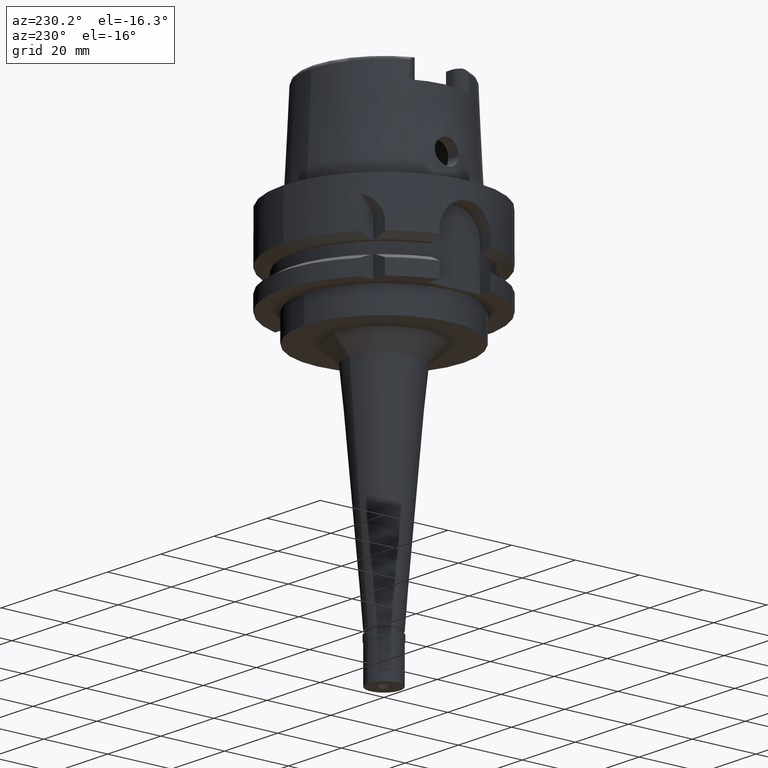
[diagram: clean part render]
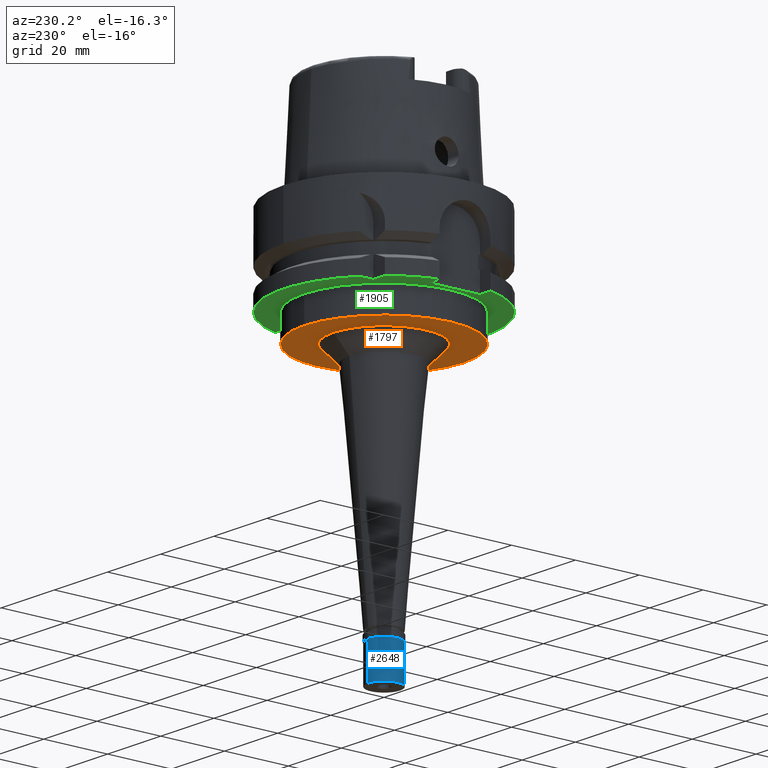
[diagram: same view with three faces highlighted in distinct colors, each labeled with its STEP entity id]
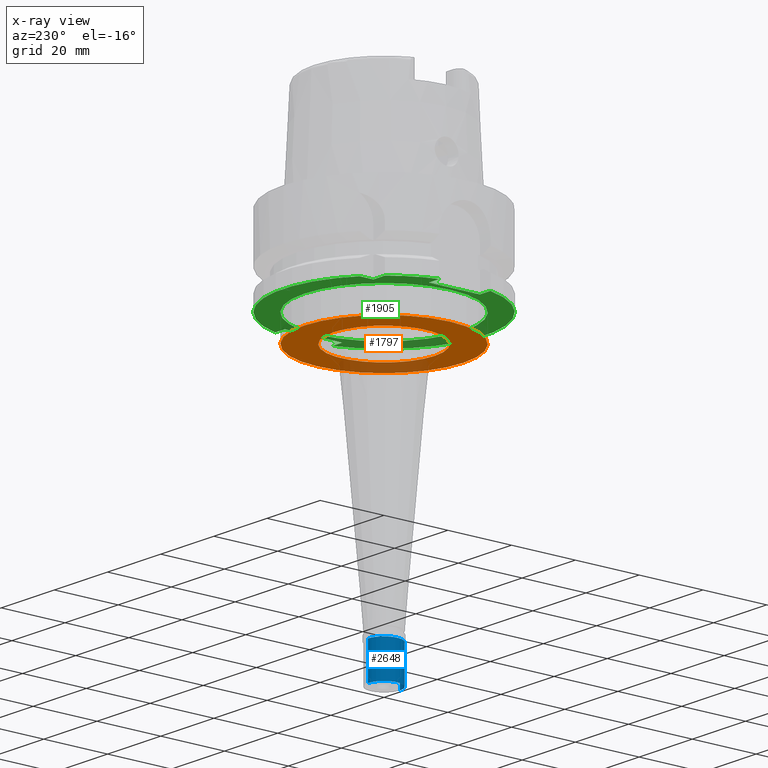
[diagram: x-ray of the same camera — body ghosted, the three highlighted faces saturated]
A machine part, auxiliary view with three faces highlighted in distinct colors.
The next image is the same camera in x-ray (body ghosted, the three faces saturated) — at least one of them is partly hidden behind the body in this view.
Their STEP definitions:

[orange] entity #1797 — the highlighted planar face has unit normal (0, 0, -1).
#317 = CARTESIAN_POINT ( 'NONE',  ( 0.0000000000000000000, -15.86174045624000328, -34.00000000000000000 ) ) ;
#330 = DIRECTION ( 'NONE',  ( 0.0000000000000000000, 0.0000000000000000000, 1.000000000000000000 ) ) ;
#483 = AXIS2_PLACEMENT_3D ( 'NONE', #1139, #2856, #4512 ) ;
#656 = CARTESIAN_POINT ( 'NONE',  ( 0.0000000000000000000, -25.00000000000000000, -34.00000000000000000 ) ) ;
#696 = CARTESIAN_POINT ( 'NONE',  ( 0.0000000000000000000, 1.707341335030999953E-14, -34.00000000000000000 ) ) ;
#706 = CARTESIAN_POINT ( 'NONE',  ( 0.0000000000000000000, 25.00000000000000000, -34.00000000000000000 ) ) ;
#770 = DIRECTION ( 'NONE',  ( 0.0000000000000000000, 0.0000000000000000000, -1.000000000000000000 ) ) ;
#810 = DIRECTION ( 'NONE',  ( 0.0000000000000000000, -1.000000000000000000, 0.0000000000000000000 ) ) ;
#1056 = ORIENTED_EDGE ( 'NONE', *, *, #1578, .F. ) ;
#1139 = CARTESIAN_POINT ( 'NONE',  ( 0.0000000000000000000, 0.0000000000000000000, -34.00000000000000000 ) ) ;
#1303 = EDGE_CURVE ( 'NONE', #4961, #3239, #3235, .T. ) ;
#1331 = DIRECTION ( 'NONE',  ( 0.0000000000000000000, 0.0000000000000000000, -1.000000000000000000 ) ) ;
#1392 = EDGE_CURVE ( 'NONE', #4087, #1724, #3598, .T. ) ;
#1436 = EDGE_LOOP ( 'NONE', ( #4672, #4607 ) ) ;
#1578 = EDGE_CURVE ( 'NONE', #1724, #4087, #2252, .T. ) ;
#1588 = CARTESIAN_POINT ( 'NONE',  ( 0.0000000000000000000, 0.0000000000000000000, -34.00000000000000000 ) ) ;
#1593 = DIRECTION ( 'NONE',  ( 0.0000000000000000000, -1.000000000000000000, 0.0000000000000000000 ) ) ;
#1607 = FACE_OUTER_BOUND ( 'NONE', #1617, .T. ) ;
#1617 = EDGE_LOOP ( 'NONE', ( #5018, #1056 ) ) ;
#1724 = VERTEX_POINT ( 'NONE', #656 ) ;
#1797 = ADVANCED_FACE ( 'NONE', ( #1607, #5407 ), #4124, .T. ) ;
#2252 = CIRCLE ( 'NONE', #2961, 25.00000000000000000 ) ;
#2856 = DIRECTION ( 'NONE',  ( 0.0000000000000000000, 0.0000000000000000000, -1.000000000000000000 ) ) ;
#2961 = AXIS2_PLACEMENT_3D ( 'NONE', #5437, #330, #1593 ) ;
#3024 = DIRECTION ( 'NONE',  ( 0.0000000000000000000, -1.000000000000000000, 0.0000000000000000000 ) ) ;
#3235 = CIRCLE ( 'NONE', #5182, 15.86174045624000328 ) ;
#3239 = VERTEX_POINT ( 'NONE', #4397 ) ;
#3598 = CIRCLE ( 'NONE', #5000, 25.00000000000000000 ) ;
#3687 = CIRCLE ( 'NONE', #483, 15.86174045624000328 ) ;
#3788 = CARTESIAN_POINT ( 'NONE',  ( 0.0000000000000000000, 0.0000000000000000000, -34.00000000000000000 ) ) ;
#4087 = VERTEX_POINT ( 'NONE', #706 ) ;
#4124 = PLANE ( 'NONE',  #4644 ) ;
#4397 = CARTESIAN_POINT ( 'NONE',  ( 0.0000000000000000000, 15.86174045624000328, -34.00000000000000000 ) ) ;
#4439 = EDGE_CURVE ( 'NONE', #3239, #4961, #3687, .T. ) ;
#4512 = DIRECTION ( 'NONE',  ( 0.0000000000000000000, 1.000000000000000000, 0.0000000000000000000 ) ) ;
#4607 = ORIENTED_EDGE ( 'NONE', *, *, #1303, .F. ) ;
#4644 = AXIS2_PLACEMENT_3D ( 'NONE', #1588, #770, #810 ) ;
#4672 = ORIENTED_EDGE ( 'NONE', *, *, #4439, .F. ) ;
#4870 = DIRECTION ( 'NONE',  ( 0.0000000000000000000, 1.000000000000000000, 0.0000000000000000000 ) ) ;
#4892 = DIRECTION ( 'NONE',  ( 0.0000000000000000000, 0.0000000000000000000, 1.000000000000000000 ) ) ;
#4961 = VERTEX_POINT ( 'NONE', #317 ) ;
#5000 = AXIS2_PLACEMENT_3D ( 'NONE', #696, #4892, #4870 ) ;
#5018 = ORIENTED_EDGE ( 'NONE', *, *, #1392, .F. ) ;
#5182 = AXIS2_PLACEMENT_3D ( 'NONE', #3788, #1331, #3024 ) ;
#5407 = FACE_BOUND ( 'NONE', #1436, .T. ) ;
#5437 = CARTESIAN_POINT ( 'NONE',  ( 0.0000000000000000000, 1.707341335030999953E-14, -34.00000000000000000 ) ) ;

[blue] entity #2648 — the highlighted cylindrical surface (edge-blend (fillet) strip) has radius 5 mm, axis along (0, 0, 1).
#259 = CARTESIAN_POINT ( 'NONE',  ( 0.0000000000000000000, 0.0000000000000000000, -13.65000000000000036 ) ) ;
#491 = VECTOR ( 'NONE', #5374, 1000.000000000000000 ) ;
#711 = EDGE_CURVE ( 'NONE', #2506, #3742, #4185, .T. ) ;
#768 = CARTESIAN_POINT ( 'NONE',  ( 0.0000000000000000000, -5.000000000000000000, -13.00000000000000000 ) ) ;
#993 = CARTESIAN_POINT ( 'NONE',  ( 0.0000000000000000000, 0.0000000000000000000, -1.800000000000000044 ) ) ;
#1052 = DIRECTION ( 'NONE',  ( 0.0000000000000000000, -1.000000000000000000, 0.0000000000000000000 ) ) ;
#1072 = EDGE_CURVE ( 'NONE', #4005, #2506, #1272, .T. ) ;
#1167 = ORIENTED_EDGE ( 'NONE', *, *, #711, .T. ) ;
#1272 = CIRCLE ( 'NONE', #1980, 5.000000000000000000 ) ;
#1480 = ORIENTED_EDGE ( 'NONE', *, *, #1072, .T. ) ;
#1544 = EDGE_CURVE ( 'NONE', #3742, #3531, #3686, .T. ) ;
#1615 = VECTOR ( 'NONE', #2470, 1000.000000000000000 ) ;
#1814 = DIRECTION ( 'NONE',  ( 0.0000000000000000000, 0.0000000000000000000, -1.000000000000000000 ) ) ;
#1934 = DIRECTION ( 'NONE',  ( 0.0000000000000000000, 1.000000000000000000, 0.0000000000000000000 ) ) ;
#1980 = AXIS2_PLACEMENT_3D ( 'NONE', #993, #1814, #1052 ) ;
#2244 = ORIENTED_EDGE ( 'NONE', *, *, #1544, .T. ) ;
#2470 = DIRECTION ( 'NONE',  ( 0.0000000000000000000, 0.0000000000000000000, -1.000000000000000000 ) ) ;
#2494 = CARTESIAN_POINT ( 'NONE',  ( 0.0000000000000000000, 5.000000000000000000, -1.800000000000000044 ) ) ;
#2506 = VERTEX_POINT ( 'NONE', #5327 ) ;
#2648 = ADVANCED_FACE ( 'NONE', ( #2728 ), #5314, .T. ) ;
#2728 = FACE_OUTER_BOUND ( 'NONE', #4924, .T. ) ;
#2902 = AXIS2_PLACEMENT_3D ( 'NONE', #259, #4494, #1934 ) ;
#2908 = DIRECTION ( 'NONE',  ( 0.0000000000000000000, 1.000000000000000000, 0.0000000000000000000 ) ) ;
#3225 = ORIENTED_EDGE ( 'NONE', *, *, #4938, .F. ) ;
#3504 = AXIS2_PLACEMENT_3D ( 'NONE', #4155, #3797, #2908 ) ;
#3531 = VERTEX_POINT ( 'NONE', #768 ) ;
#3650 = LINE ( 'NONE', #4912, #491 ) ;
#3686 = CIRCLE ( 'NONE', #3504, 5.000000000000000000 ) ;
#3742 = VERTEX_POINT ( 'NONE', #4270 ) ;
#3797 = DIRECTION ( 'NONE',  ( 0.0000000000000000000, 0.0000000000000000000, 1.000000000000000000 ) ) ;
#4005 = VERTEX_POINT ( 'NONE', #4348 ) ;
#4155 = CARTESIAN_POINT ( 'NONE',  ( 0.0000000000000000000, 0.0000000000000000000, -13.00000000000000000 ) ) ;
#4185 = LINE ( 'NONE', #2494, #1615 ) ;
#4270 = CARTESIAN_POINT ( 'NONE',  ( 0.0000000000000000000, 5.000000000000000000, -13.00000000000000000 ) ) ;
#4348 = CARTESIAN_POINT ( 'NONE',  ( 0.0000000000000000000, -5.000000000000000000, -1.800000000000000044 ) ) ;
#4494 = DIRECTION ( 'NONE',  ( 0.0000000000000000000, 0.0000000000000000000, 1.000000000000000000 ) ) ;
#4912 = CARTESIAN_POINT ( 'NONE',  ( 0.0000000000000000000, -5.000000000000000000, -1.800000000000000044 ) ) ;
#4924 = EDGE_LOOP ( 'NONE', ( #2244, #3225, #1480, #1167 ) ) ;
#4938 = EDGE_CURVE ( 'NONE', #4005, #3531, #3650, .T. ) ;
#5314 = CYLINDRICAL_SURFACE ( 'NONE', #2902, 5.000000000000000000 ) ;
#5327 = CARTESIAN_POINT ( 'NONE',  ( 0.0000000000000000000, 5.000000000000000000, -1.800000000000000044 ) ) ;
#5374 = DIRECTION ( 'NONE',  ( 0.0000000000000000000, 0.0000000000000000000, -1.000000000000000000 ) ) ;

[green] entity #1905 — the highlighted planar face has unit normal (0, 0, -1).
#34 = VERTEX_POINT ( 'NONE', #3348 ) ;
#73 = CARTESIAN_POINT ( 'NONE',  ( -30.46719547316000032, -8.000000000000000000, -26.00000000000000000 ) ) ;
#93 = EDGE_CURVE ( 'NONE', #264, #34, #4309, .T. ) ;
#101 = LINE ( 'NONE', #1772, #2723 ) ;
#202 = DIRECTION ( 'NONE',  ( 0.0000000000000000000, 1.000000000000000000, 0.0000000000000000000 ) ) ;
#248 = VERTEX_POINT ( 'NONE', #73 ) ;
#262 = CARTESIAN_POINT ( 'NONE',  ( 26.50000000000000000, -9.000000000000000000, -26.00000000000000000 ) ) ;
#264 = VERTEX_POINT ( 'NONE', #925 ) ;
#307 = AXIS2_PLACEMENT_3D ( 'NONE', #1761, #1351, #1784 ) ;
#314 = VECTOR ( 'NONE', #758, 1000.000000000000000 ) ;
#321 = DIRECTION ( 'NONE',  ( 0.0000000000000000000, 1.000000000000000000, 0.0000000000000000000 ) ) ;
#338 = LINE ( 'NONE', #4136, #1277 ) ;
#358 = EDGE_CURVE ( 'NONE', #3512, #564, #4039, .T. ) ;
#379 = VERTEX_POINT ( 'NONE', #2944 ) ;
#390 = AXIS2_PLACEMENT_3D ( 'NONE', #3330, #1223, #1148 ) ;
#415 = CARTESIAN_POINT ( 'NONE',  ( -20.00000000000000000, 20.00000000000000000, -26.00000000000000000 ) ) ;
#438 = DIRECTION ( 'NONE',  ( 0.0000000000000000000, 1.000000000000000000, 0.0000000000000000000 ) ) ;
#457 = CARTESIAN_POINT ( 'NONE',  ( -26.50000000000000000, 8.000000000000000000, -26.00000000000000000 ) ) ;
#535 = EDGE_CURVE ( 'NONE', #3726, #2029, #5290, .T. ) ;
#564 = VERTEX_POINT ( 'NONE', #3177 ) ;
#611 = VERTEX_POINT ( 'NONE', #2272 ) ;
#651 = ORIENTED_EDGE ( 'NONE', *, *, #728, .F. ) ;
#728 = EDGE_CURVE ( 'NONE', #248, #2374, #4195, .T. ) ;
#758 = DIRECTION ( 'NONE',  ( -1.000000000000000000, -1.532123616190999905E-13, 0.0000000000000000000 ) ) ;
#788 = DIRECTION ( 'NONE',  ( 0.0000000000000000000, 0.0000000000000000000, -1.000000000000000000 ) ) ;
#925 = CARTESIAN_POINT ( 'NONE',  ( -26.50000000000000000, 8.000000000000000000, -26.00000000000000000 ) ) ;
#927 = VECTOR ( 'NONE', #2674, 1000.000000000000000 ) ;
#932 = ORIENTED_EDGE ( 'NONE', *, *, #2842, .F. ) ;
#1024 = ORIENTED_EDGE ( 'NONE', *, *, #4513, .T. ) ;
#1077 = VERTEX_POINT ( 'NONE', #1869 ) ;
#1148 = DIRECTION ( 'NONE',  ( 0.0000000000000000000, -1.000000000000000000, 0.0000000000000000000 ) ) ;
#1223 = DIRECTION ( 'NONE',  ( 0.0000000000000000000, 0.0000000000000000000, 1.000000000000000000 ) ) ;
#1228 = DIRECTION ( 'NONE',  ( -0.7725773665802099233, 0.6349206349206079070, 0.0000000000000000000 ) ) ;
#1239 = EDGE_LOOP ( 'NONE', ( #5055, #4641, #4167, #1804, #651, #4480, #3843, #3411, #1680, #932, #1024 ) ) ;
#1277 = VECTOR ( 'NONE', #2235, 1000.000000000000000 ) ;
#1283 = PLANE ( 'NONE',  #5005 ) ;
#1309 = CARTESIAN_POINT ( 'NONE',  ( 0.0000000000000000000, 0.0000000000000000000, -26.00000000000000000 ) ) ;
#1330 = CARTESIAN_POINT ( 'NONE',  ( 30.18691769625000276, -9.000000000000000000, -26.00000000000000000 ) ) ;
#1348 = EDGE_LOOP ( 'NONE', ( #3142, #2109 ) ) ;
#1351 = DIRECTION ( 'NONE',  ( 0.0000000000000000000, 0.0000000000000000000, -1.000000000000000000 ) ) ;
#1355 = AXIS2_PLACEMENT_3D ( 'NONE', #3337, #5026, #1228 ) ;
#1502 = CARTESIAN_POINT ( 'NONE',  ( -24.33618704727619786, 19.99999999999964828, -26.00000000000000000 ) ) ;
#1671 = EDGE_CURVE ( 'NONE', #611, #264, #4667, .T. ) ;
#1680 = ORIENTED_EDGE ( 'NONE', *, *, #3875, .F. ) ;
#1761 = CARTESIAN_POINT ( 'NONE',  ( 0.0000000000000000000, 1.707341335030999953E-14, -26.00000000000000000 ) ) ;
#1772 = CARTESIAN_POINT ( 'NONE',  ( -26.50000000000000000, -8.000000000000000000, -26.00000000000000000 ) ) ;
#1784 = DIRECTION ( 'NONE',  ( 0.0000000000000000000, -1.000000000000000000, 0.0000000000000000000 ) ) ;
#1804 = ORIENTED_EDGE ( 'NONE', *, *, #3916, .F. ) ;
#1869 = CARTESIAN_POINT ( 'NONE',  ( -20.00000000000000000, 24.33618704727999926, -26.00000000000000000 ) ) ;
#1894 = AXIS2_PLACEMENT_3D ( 'NONE', #1970, #788, #321 ) ;
#1905 = ADVANCED_FACE ( 'NONE', ( #3425, #5076 ), #1283, .T. ) ;
#1970 = CARTESIAN_POINT ( 'NONE',  ( 0.0000000000000000000, 1.707341335030999953E-14, -26.00000000000000000 ) ) ;
#1994 = CARTESIAN_POINT ( 'NONE',  ( 0.0000000000000000000, 25.00000000000000000, -26.00000000000000000 ) ) ;
#2029 = VERTEX_POINT ( 'NONE', #2632 ) ;
#2051 = DIRECTION ( 'NONE',  ( 0.0000000000000000000, 0.0000000000000000000, 1.000000000000000000 ) ) ;
#2109 = ORIENTED_EDGE ( 'NONE', *, *, #4559, .F. ) ;
#2197 = CARTESIAN_POINT ( 'NONE',  ( -26.50000000000000000, -8.000000000000000000, -26.00000000000000000 ) ) ;
#2235 = DIRECTION ( 'NONE',  ( 1.540316790609000194E-13, 1.000000000000000000, 0.0000000000000000000 ) ) ;
#2237 = LINE ( 'NONE', #1330, #4804 ) ;
#2272 = CARTESIAN_POINT ( 'NONE',  ( -26.50000000000000000, -8.000000000000000000, -26.00000000000000000 ) ) ;
#2318 = EDGE_CURVE ( 'NONE', #4130, #1077, #4055, .T. ) ;
#2374 = VERTEX_POINT ( 'NONE', #2484 ) ;
#2394 = EDGE_CURVE ( 'NONE', #4130, #2029, #3292, .T. ) ;
#2452 = EDGE_CURVE ( 'NONE', #611, #248, #101, .T. ) ;
#2484 = CARTESIAN_POINT ( 'NONE',  ( 30.18691769625000276, -9.000000000000000000, -26.00000000000000000 ) ) ;
#2616 = DIRECTION ( 'NONE',  ( -1.000000000000000000, 8.776122650817999518E-14, 0.0000000000000000000 ) ) ;
#2632 = CARTESIAN_POINT ( 'NONE',  ( 26.50000000000000000, 9.000000000000000000, -26.00000000000000000 ) ) ;
#2674 = DIRECTION ( 'NONE',  ( 0.0000000000000000000, 1.000000000000000000, 0.0000000000000000000 ) ) ;
#2723 = VECTOR ( 'NONE', #3488, 1000.000000000000000 ) ;
#2842 = EDGE_CURVE ( 'NONE', #379, #4941, #5479, .T. ) ;
#2944 = CARTESIAN_POINT ( 'NONE',  ( -20.00000000000000000, 20.00000000000000000, -26.00000000000000000 ) ) ;
#3141 = DIRECTION ( 'NONE',  ( -1.000000000000000000, -7.082459574769999312E-14, 0.0000000000000000000 ) ) ;
#3142 = ORIENTED_EDGE ( 'NONE', *, *, #358, .F. ) ;
#3177 = CARTESIAN_POINT ( 'NONE',  ( 0.0000000000000000000, -25.00000000000000000, -26.00000000000000000 ) ) ;
#3292 = LINE ( 'NONE', #4975, #3338 ) ;
#3330 = CARTESIAN_POINT ( 'NONE',  ( 0.0000000000000000000, 1.707341335030999953E-14, -26.00000000000000000 ) ) ;
#3337 = CARTESIAN_POINT ( 'NONE',  ( 0.0000000000000000000, 1.707341335030999953E-14, -26.00000000000000000 ) ) ;
#3338 = VECTOR ( 'NONE', #4562, 1000.000000000000000 ) ;
#3348 = CARTESIAN_POINT ( 'NONE',  ( -30.46719547316000032, 8.000000000000000000, -26.00000000000000000 ) ) ;
#3401 = CIRCLE ( 'NONE', #307, 25.00000000000000000 ) ;
#3411 = ORIENTED_EDGE ( 'NONE', *, *, #93, .T. ) ;
#3425 = FACE_OUTER_BOUND ( 'NONE', #1239, .T. ) ;
#3453 = DIRECTION ( 'NONE',  ( 0.0000000000000000000, 0.0000000000000000000, -1.000000000000000000 ) ) ;
#3488 = DIRECTION ( 'NONE',  ( -1.000000000000000000, -8.686570378870999660E-14, 0.0000000000000000000 ) ) ;
#3512 = VERTEX_POINT ( 'NONE', #1994 ) ;
#3726 = VERTEX_POINT ( 'NONE', #4659 ) ;
#3843 = ORIENTED_EDGE ( 'NONE', *, *, #1671, .T. ) ;
#3875 = EDGE_CURVE ( 'NONE', #4941, #34, #4901, .T. ) ;
#3916 = EDGE_CURVE ( 'NONE', #2374, #3726, #2237, .T. ) ;
#3929 = VECTOR ( 'NONE', #2616, 1000.000000000000000 ) ;
#4039 = CIRCLE ( 'NONE', #1894, 25.00000000000000000 ) ;
#4055 = CIRCLE ( 'NONE', #5392, 31.50000000000000000 ) ;
#4130 = VERTEX_POINT ( 'NONE', #5041 ) ;
#4136 = CARTESIAN_POINT ( 'NONE',  ( -20.00000000000000000, 20.00000000000000000, -26.00000000000000000 ) ) ;
#4167 = ORIENTED_EDGE ( 'NONE', *, *, #535, .F. ) ;
#4195 = CIRCLE ( 'NONE', #390, 31.50000000000000000 ) ;
#4309 = LINE ( 'NONE', #457, #3929 ) ;
#4480 = ORIENTED_EDGE ( 'NONE', *, *, #2452, .F. ) ;
#4513 = EDGE_CURVE ( 'NONE', #379, #1077, #338, .T. ) ;
#4559 = EDGE_CURVE ( 'NONE', #564, #3512, #3401, .T. ) ;
#4562 = DIRECTION ( 'NONE',  ( -1.000000000000000000, 6.937919583448999879E-14, 0.0000000000000000000 ) ) ;
#4641 = ORIENTED_EDGE ( 'NONE', *, *, #2394, .T. ) ;
#4659 = CARTESIAN_POINT ( 'NONE',  ( 26.50000000000000000, -9.000000000000000000, -26.00000000000000000 ) ) ;
#4667 = LINE ( 'NONE', #2197, #927 ) ;
#4685 = DIRECTION ( 'NONE',  ( 0.0000000000000000000, -1.000000000000000000, 0.0000000000000000000 ) ) ;
#4804 = VECTOR ( 'NONE', #3141, 1000.000000000000000 ) ;
#4901 = CIRCLE ( 'NONE', #1355, 31.50000000000000711 ) ;
#4941 = VERTEX_POINT ( 'NONE', #1502 ) ;
#4975 = CARTESIAN_POINT ( 'NONE',  ( 30.18691769625000276, 9.000000000000000000, -26.00000000000000000 ) ) ;
#5005 = AXIS2_PLACEMENT_3D ( 'NONE', #1309, #3453, #4685 ) ;
#5008 = CARTESIAN_POINT ( 'NONE',  ( 0.0000000000000000000, 1.707341335030999953E-14, -26.00000000000000000 ) ) ;
#5026 = DIRECTION ( 'NONE',  ( 0.0000000000000000000, 0.0000000000000000000, 1.000000000000000000 ) ) ;
#5041 = CARTESIAN_POINT ( 'NONE',  ( 30.18691769625000276, 9.000000000000000000, -26.00000000000000000 ) ) ;
#5055 = ORIENTED_EDGE ( 'NONE', *, *, #2318, .F. ) ;
#5076 = FACE_BOUND ( 'NONE', #1348, .T. ) ;
#5290 = LINE ( 'NONE', #262, #5362 ) ;
#5362 = VECTOR ( 'NONE', #202, 1000.000000000000000 ) ;
#5392 = AXIS2_PLACEMENT_3D ( 'NONE', #5008, #2051, #438 ) ;
#5479 = LINE ( 'NONE', #415, #314 ) ;